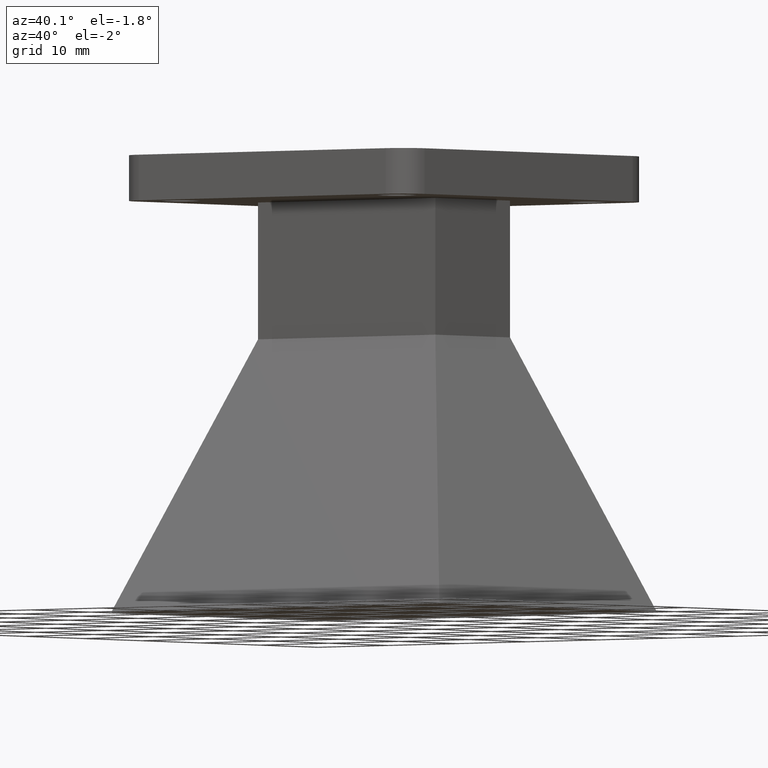
[diagram: clean part render]
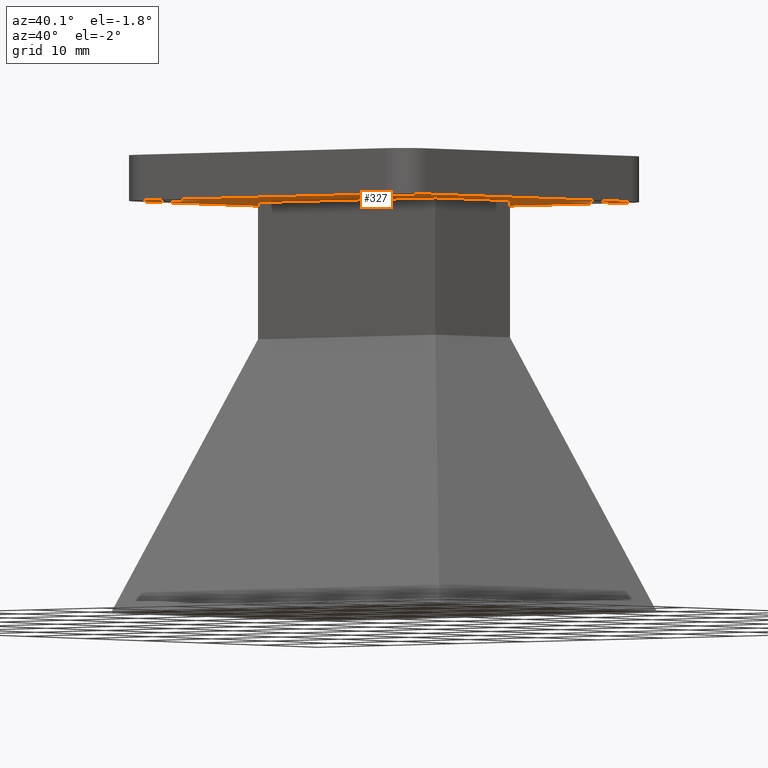
[diagram: same view with one face highlighted and labeled with its STEP entity id]
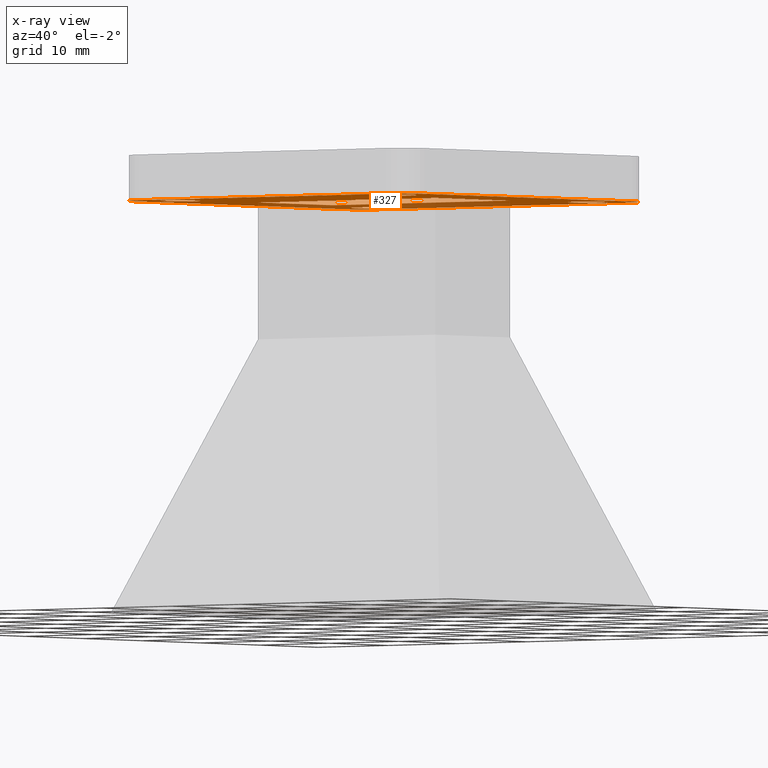
[diagram: x-ray of the same camera — body ghosted, the highlighted face saturated]
A machine part, auxiliary view. The second image highlights one B-rep face of the part: STEP entity #327.
The next image is the same camera in x-ray: the body ghosted, the highlighted face saturated — about 31% of this face is hidden behind the body in this view.
In plain terms, the highlighted planar face has unit normal (0, 0, 1).
Its self-contained STEP definition (entity closure, byte-faithful):
#6 = EDGE_CURVE ( 'NONE', #121, #649, #537, .T. ) ;
#14 = ORIENTED_EDGE ( 'NONE', *, *, #837, .F. ) ;
#31 = ORIENTED_EDGE ( 'NONE', *, *, #1131, .F. ) ;
#36 = DIRECTION ( 'NONE',  ( 0.0000000000000000000, 0.0000000000000000000, 1.000000000000000000 ) ) ;
#38 = CARTESIAN_POINT ( 'NONE',  ( -0.8149999999999997200, 0.6968897637795274900, -0.1968503937007874100 ) ) ;
#48 = CARTESIAN_POINT ( 'NONE',  ( -0.6099999999999997600, 0.6400000000000001200, -0.1968503937007874100 ) ) ;
#50 = AXIS2_PLACEMENT_3D ( 'NONE', #223, #136, #751 ) ;
#56 = AXIS2_PLACEMENT_3D ( 'NONE', #389, #1020, #911 ) ;
#62 = ORIENTED_EDGE ( 'NONE', *, *, #247, .F. ) ;
#65 = CARTESIAN_POINT ( 'NONE',  ( -0.6968897637795273800, -0.8149999999999999500, -0.1968503937007874100 ) ) ;
#75 = EDGE_LOOP ( 'NONE', ( #1042, #31, #814, #543 ) ) ;
#101 = EDGE_CURVE ( 'NONE', #463, #367, #554, .T. ) ;
#107 = CARTESIAN_POINT ( 'NONE',  ( 0.6968897637795276000, -0.6968897637795274900, -0.1968503937007874100 ) ) ;
#121 = VERTEX_POINT ( 'NONE', #213 ) ;
#128 = DIRECTION ( 'NONE',  ( 0.0000000000000000000, 1.000000000000000000, 0.0000000000000000000 ) ) ;
#130 = EDGE_CURVE ( 'NONE', #939, #121, #333, .T. ) ;
#132 = DIRECTION ( 'NONE',  ( 0.0000000000000000000, 0.0000000000000000000, 1.000000000000000000 ) ) ;
#134 = DIRECTION ( 'NONE',  ( 0.0000000000000000000, 0.0000000000000000000, 1.000000000000000000 ) ) ;
#136 = DIRECTION ( 'NONE',  ( 0.0000000000000000000, 0.0000000000000000000, 1.000000000000000000 ) ) ;
#151 = CIRCLE ( 'NONE', #541, 0.1181102362204724100 ) ;
#164 = AXIS2_PLACEMENT_3D ( 'NONE', #486, #226, #932 ) ;
#177 = EDGE_LOOP ( 'NONE', ( #406, #1103 ) ) ;
#180 = CARTESIAN_POINT ( 'NONE',  ( -0.4999999999999998300, -0.2500000000000000600, -0.1968503937007874100 ) ) ;
#189 = ORIENTED_EDGE ( 'NONE', *, *, #356, .F. ) ;
#201 = VECTOR ( 'NONE', #325, 39.37007874015748100 ) ;
#202 = FACE_BOUND ( 'NONE', #75, .T. ) ;
#210 = EDGE_LOOP ( 'NONE', ( #341, #902 ) ) ;
#213 = CARTESIAN_POINT ( 'NONE',  ( 0.5000000000000001100, -0.2500000000000000600, -0.1968503937007874100 ) ) ;
#223 = CARTESIAN_POINT ( 'NONE',  ( 0.6100000000000002100, 0.6400000000000002400, -0.1968503937007874100 ) ) ;
#226 = DIRECTION ( 'NONE',  ( 0.0000000000000000000, 0.0000000000000000000, 1.000000000000000000 ) ) ;
#230 = DIRECTION ( 'NONE',  ( 1.000000000000000000, 0.0000000000000000000, 0.0000000000000000000 ) ) ;
#232 = CIRCLE ( 'NONE', #56, 0.08594000000000001600 ) ;
#240 = CARTESIAN_POINT ( 'NONE',  ( 0.6100000000000002100, 0.6400000000000002400, -0.1968503937007874100 ) ) ;
#242 = DIRECTION ( 'NONE',  ( 0.0000000000000000000, 0.0000000000000000000, 1.000000000000000000 ) ) ;
#243 = CARTESIAN_POINT ( 'NONE',  ( 0.6959400000000002300, 0.6400000000000002400, -0.1968503937007874100 ) ) ;
#247 = EDGE_CURVE ( 'NONE', #1114, #463, #936, .T. ) ;
#257 = CARTESIAN_POINT ( 'NONE',  ( 0.6968897637795276000, -0.8149999999999999500, -0.1968503937007874100 ) ) ;
#263 = CARTESIAN_POINT ( 'NONE',  ( -0.4999999999999998300, 0.2500000000000000600, -0.1968503937007874100 ) ) ;
#277 = VERTEX_POINT ( 'NONE', #468 ) ;
#287 = CIRCLE ( 'NONE', #994, 0.08594000000000001600 ) ;
#291 = DIRECTION ( 'NONE',  ( 0.0000000000000000000, 0.0000000000000000000, 1.000000000000000000 ) ) ;
#295 = EDGE_CURVE ( 'NONE', #339, #1083, #376, .T. ) ;
#296 = CARTESIAN_POINT ( 'NONE',  ( 0.8150000000000000600, -0.6968897637795274900, -0.1968503937007874100 ) ) ;
#300 = LINE ( 'NONE', #304, #631 ) ;
#304 = CARTESIAN_POINT ( 'NONE',  ( -0.6968897637795273800, 0.8149999999999999500, -0.1968503937007874100 ) ) ;
#309 = CARTESIAN_POINT ( 'NONE',  ( -0.5240599999999997500, -0.6399999999999999000, -0.1968503937007874100 ) ) ;
#325 = DIRECTION ( 'NONE',  ( -0.0000000000000000000, -1.000000000000000000, -0.0000000000000000000 ) ) ;
#327 = ADVANCED_FACE ( 'NONE', ( #349, #520, #729, #535, #1164, #202 ), #1027, .F. ) ;
#333 = LINE ( 'NONE', #745, #738 ) ;
#334 = DIRECTION ( 'NONE',  ( 1.000000000000000000, 0.0000000000000000000, 0.0000000000000000000 ) ) ;
#338 = AXIS2_PLACEMENT_3D ( 'NONE', #107, #291, #906 ) ;
#339 = VERTEX_POINT ( 'NONE', #938 ) ;
#341 = ORIENTED_EDGE ( 'NONE', *, *, #390, .T. ) ;
#342 = DIRECTION ( 'NONE',  ( 1.000000000000000000, 0.0000000000000000000, 0.0000000000000000000 ) ) ;
#343 = CARTESIAN_POINT ( 'NONE',  ( -0.6099999999999997600, -0.6399999999999999000, -0.1968503937007874100 ) ) ;
#347 = CARTESIAN_POINT ( 'NONE',  ( -0.6959399999999997800, -0.6399999999999999000, -0.1968503937007874100 ) ) ;
#349 = FACE_BOUND ( 'NONE', #354, .T. ) ;
#354 = EDGE_LOOP ( 'NONE', ( #1081, #859 ) ) ;
#356 = EDGE_CURVE ( 'NONE', #975, #339, #874, .T. ) ;
#367 = VERTEX_POINT ( 'NONE', #414 ) ;
#370 = AXIS2_PLACEMENT_3D ( 'NONE', #343, #862, #334 ) ;
#374 = CIRCLE ( 'NONE', #1119, 0.08594000000000001600 ) ;
#376 = CIRCLE ( 'NONE', #920, 0.1181102362204724100 ) ;
#379 = VERTEX_POINT ( 'NONE', #832 ) ;
#381 = VERTEX_POINT ( 'NONE', #1032 ) ;
#387 = CIRCLE ( 'NONE', #629, 0.1181102362204724100 ) ;
#389 = CARTESIAN_POINT ( 'NONE',  ( 0.6100000000000002100, -0.6399999999999996800, -0.1968503937007874100 ) ) ;
#390 = EDGE_CURVE ( 'NONE', #889, #1056, #838, .T. ) ;
#401 = CIRCLE ( 'NONE', #50, 0.08594000000000001600 ) ;
#406 = ORIENTED_EDGE ( 'NONE', *, *, #870, .T. ) ;
#408 = EDGE_CURVE ( 'NONE', #1140, #379, #287, .T. ) ;
#409 = VERTEX_POINT ( 'NONE', #765 ) ;
#413 = EDGE_CURVE ( 'NONE', #1083, #1114, #728, .T. ) ;
#414 = CARTESIAN_POINT ( 'NONE',  ( 0.8150000000000000600, 0.6968897637795274900, -0.1968503937007874100 ) ) ;
#426 = DIRECTION ( 'NONE',  ( 1.000000000000000000, 0.0000000000000000000, 0.0000000000000000000 ) ) ;
#447 = ORIENTED_EDGE ( 'NONE', *, *, #101, .F. ) ;
#453 = CIRCLE ( 'NONE', #770, 0.08594000000000001600 ) ;
#463 = VERTEX_POINT ( 'NONE', #1060 ) ;
#468 = CARTESIAN_POINT ( 'NONE',  ( 0.5240600000000001900, -0.6399999999999996800, -0.1968503937007874100 ) ) ;
#471 = DIRECTION ( 'NONE',  ( -1.000000000000000000, -0.0000000000000000000, -0.0000000000000000000 ) ) ;
#478 = VECTOR ( 'NONE', #603, 39.37007874015748100 ) ;
#486 = CARTESIAN_POINT ( 'NONE',  ( 0.6968897637795276000, -0.6968897637795274900, -0.1968503937007874100 ) ) ;
#489 = VERTEX_POINT ( 'NONE', #243 ) ;
#495 = LINE ( 'NONE', #1162, #785 ) ;
#520 = FACE_BOUND ( 'NONE', #991, .T. ) ;
#522 = DIRECTION ( 'NONE',  ( 1.000000000000000000, 0.0000000000000000000, 0.0000000000000000000 ) ) ;
#524 = EDGE_CURVE ( 'NONE', #892, #975, #387, .T. ) ;
#535 = FACE_BOUND ( 'NONE', #177, .T. ) ;
#537 = LINE ( 'NONE', #180, #955 ) ;
#541 = AXIS2_PLACEMENT_3D ( 'NONE', #565, #821, #652 ) ;
#543 = ORIENTED_EDGE ( 'NONE', *, *, #6, .F. ) ;
#554 = LINE ( 'NONE', #296, #797 ) ;
#565 = CARTESIAN_POINT ( 'NONE',  ( 0.6968897637795276000, 0.6968897637795274900, -0.1968503937007874100 ) ) ;
#575 = ORIENTED_EDGE ( 'NONE', *, *, #998, .T. ) ;
#580 = CARTESIAN_POINT ( 'NONE',  ( -0.6099999999999997600, -0.6399999999999999000, -0.1968503937007874100 ) ) ;
#585 = DIRECTION ( 'NONE',  ( -1.000000000000000000, 0.0000000000000000000, 0.0000000000000000000 ) ) ;
#587 = ORIENTED_EDGE ( 'NONE', *, *, #1015, .T. ) ;
#594 = EDGE_CURVE ( 'NONE', #649, #653, #495, .T. ) ;
#596 = CARTESIAN_POINT ( 'NONE',  ( -0.6968897637795273800, -0.8149999999999999500, -0.1968503937007874100 ) ) ;
#597 = EDGE_CURVE ( 'NONE', #277, #409, #953, .T. ) ;
#603 = DIRECTION ( 'NONE',  ( 1.000000000000000000, 0.0000000000000000000, 0.0000000000000000000 ) ) ;
#609 = CARTESIAN_POINT ( 'NONE',  ( -0.6959399999999997800, 0.6400000000000001200, -0.1968503937007874100 ) ) ;
#618 = CARTESIAN_POINT ( 'NONE',  ( -0.4999999999999998300, -0.2500000000000000000, -0.1968503937007874100 ) ) ;
#629 = AXIS2_PLACEMENT_3D ( 'NONE', #965, #1067, #709 ) ;
#631 = VECTOR ( 'NONE', #471, 39.37007874015748100 ) ;
#648 = CARTESIAN_POINT ( 'NONE',  ( -0.6968897637795273800, 0.8149999999999999500, -0.1968503937007874100 ) ) ;
#649 = VERTEX_POINT ( 'NONE', #618 ) ;
#652 = DIRECTION ( 'NONE',  ( -1.000000000000000000, 0.0000000000000000000, 0.0000000000000000000 ) ) ;
#653 = VERTEX_POINT ( 'NONE', #263 ) ;
#669 = DIRECTION ( 'NONE',  ( 1.000000000000000000, 0.0000000000000000000, 0.0000000000000000000 ) ) ;
#674 = CARTESIAN_POINT ( 'NONE',  ( -0.6099999999999997600, 0.6400000000000001200, -0.1968503937007874100 ) ) ;
#707 = DIRECTION ( 'NONE',  ( -1.000000000000000000, -0.0000000000000000000, -0.0000000000000000000 ) ) ;
#709 = DIRECTION ( 'NONE',  ( -1.000000000000000000, 0.0000000000000000000, 0.0000000000000000000 ) ) ;
#710 = LINE ( 'NONE', #969, #478 ) ;
#719 = ORIENTED_EDGE ( 'NONE', *, *, #413, .F. ) ;
#728 = LINE ( 'NONE', #596, #755 ) ;
#729 = FACE_BOUND ( 'NONE', #210, .T. ) ;
#731 = EDGE_LOOP ( 'NONE', ( #62, #719, #843, #189, #857, #14, #979, #447 ) ) ;
#738 = VECTOR ( 'NONE', #1025, 39.37007874015748100 ) ;
#745 = CARTESIAN_POINT ( 'NONE',  ( 0.5000000000000001100, -0.2500000000000000600, -0.1968503937007874100 ) ) ;
#750 = CARTESIAN_POINT ( 'NONE',  ( -0.6968897637795273800, -0.6968897637795274900, -0.1968503937007874100 ) ) ;
#751 = DIRECTION ( 'NONE',  ( 1.000000000000000000, 0.0000000000000000000, 0.0000000000000000000 ) ) ;
#755 = VECTOR ( 'NONE', #342, 39.37007874015748100 ) ;
#765 = CARTESIAN_POINT ( 'NONE',  ( 0.6959400000000002300, -0.6399999999999996800, -0.1968503937007874100 ) ) ;
#770 = AXIS2_PLACEMENT_3D ( 'NONE', #674, #132, #230 ) ;
#785 = VECTOR ( 'NONE', #791, 39.37007874015748100 ) ;
#791 = DIRECTION ( 'NONE',  ( 0.0000000000000000000, 1.000000000000000000, 0.0000000000000000000 ) ) ;
#792 = DIRECTION ( 'NONE',  ( 0.0000000000000000000, 0.0000000000000000000, 1.000000000000000000 ) ) ;
#797 = VECTOR ( 'NONE', #128, 39.37007874015748100 ) ;
#803 = AXIS2_PLACEMENT_3D ( 'NONE', #580, #36, #669 ) ;
#808 = CIRCLE ( 'NONE', #370, 0.08594000000000001600 ) ;
#814 = ORIENTED_EDGE ( 'NONE', *, *, #594, .F. ) ;
#821 = DIRECTION ( 'NONE',  ( 0.0000000000000000000, 0.0000000000000000000, 1.000000000000000000 ) ) ;
#832 = CARTESIAN_POINT ( 'NONE',  ( -0.5240599999999997500, 0.6400000000000001200, -0.1968503937007874100 ) ) ;
#834 = CARTESIAN_POINT ( 'NONE',  ( 0.5000000000000001100, 0.2500000000000000600, -0.1968503937007874100 ) ) ;
#835 = CARTESIAN_POINT ( 'NONE',  ( -0.8149999999999997200, -0.6968897637795274900, -0.1968503937007874100 ) ) ;
#837 = EDGE_CURVE ( 'NONE', #381, #892, #300, .T. ) ;
#838 = CIRCLE ( 'NONE', #803, 0.08594000000000001600 ) ;
#842 = AXIS2_PLACEMENT_3D ( 'NONE', #882, #792, #522 ) ;
#843 = ORIENTED_EDGE ( 'NONE', *, *, #295, .F. ) ;
#848 = DIRECTION ( 'NONE',  ( 1.000000000000000000, 0.0000000000000000000, 0.0000000000000000000 ) ) ;
#857 = ORIENTED_EDGE ( 'NONE', *, *, #524, .F. ) ;
#859 = ORIENTED_EDGE ( 'NONE', *, *, #408, .T. ) ;
#862 = DIRECTION ( 'NONE',  ( 0.0000000000000000000, 0.0000000000000000000, 1.000000000000000000 ) ) ;
#867 = EDGE_CURVE ( 'NONE', #367, #381, #151, .T. ) ;
#870 = EDGE_CURVE ( 'NONE', #409, #277, #232, .T. ) ;
#874 = LINE ( 'NONE', #835, #201 ) ;
#882 = CARTESIAN_POINT ( 'NONE',  ( 0.6100000000000002100, -0.6399999999999996800, -0.1968503937007874100 ) ) ;
#889 = VERTEX_POINT ( 'NONE', #309 ) ;
#892 = VERTEX_POINT ( 'NONE', #648 ) ;
#902 = ORIENTED_EDGE ( 'NONE', *, *, #1030, .T. ) ;
#906 = DIRECTION ( 'NONE',  ( 1.000000000000000000, 0.0000000000000000000, 0.0000000000000000000 ) ) ;
#911 = DIRECTION ( 'NONE',  ( 1.000000000000000000, 0.0000000000000000000, 0.0000000000000000000 ) ) ;
#920 = AXIS2_PLACEMENT_3D ( 'NONE', #750, #134, #585 ) ;
#932 = DIRECTION ( 'NONE',  ( 1.000000000000000000, 0.0000000000000000000, -0.0000000000000000000 ) ) ;
#936 = CIRCLE ( 'NONE', #338, 0.1181102362204724100 ) ;
#938 = CARTESIAN_POINT ( 'NONE',  ( -0.8149999999999997200, -0.6968897637795274900, -0.1968503937007874100 ) ) ;
#939 = VERTEX_POINT ( 'NONE', #834 ) ;
#953 = CIRCLE ( 'NONE', #842, 0.08594000000000001600 ) ;
#955 = VECTOR ( 'NONE', #707, 39.37007874015748100 ) ;
#961 = VERTEX_POINT ( 'NONE', #1049 ) ;
#965 = CARTESIAN_POINT ( 'NONE',  ( -0.6968897637795273800, 0.6968897637795274900, -0.1968503937007874100 ) ) ;
#969 = CARTESIAN_POINT ( 'NONE',  ( -0.4999999999999998300, 0.2500000000000000600, -0.1968503937007874100 ) ) ;
#975 = VERTEX_POINT ( 'NONE', #38 ) ;
#979 = ORIENTED_EDGE ( 'NONE', *, *, #867, .F. ) ;
#986 = EDGE_CURVE ( 'NONE', #379, #1140, #453, .T. ) ;
#991 = EDGE_LOOP ( 'NONE', ( #587, #575 ) ) ;
#994 = AXIS2_PLACEMENT_3D ( 'NONE', #48, #242, #426 ) ;
#998 = EDGE_CURVE ( 'NONE', #961, #489, #401, .T. ) ;
#1015 = EDGE_CURVE ( 'NONE', #489, #961, #374, .T. ) ;
#1020 = DIRECTION ( 'NONE',  ( 0.0000000000000000000, 0.0000000000000000000, 1.000000000000000000 ) ) ;
#1025 = DIRECTION ( 'NONE',  ( -0.0000000000000000000, -1.000000000000000000, -0.0000000000000000000 ) ) ;
#1027 = PLANE ( 'NONE',  #164 ) ;
#1030 = EDGE_CURVE ( 'NONE', #1056, #889, #808, .T. ) ;
#1032 = CARTESIAN_POINT ( 'NONE',  ( 0.6968897637795276000, 0.8149999999999999500, -0.1968503937007874100 ) ) ;
#1034 = DIRECTION ( 'NONE',  ( 0.0000000000000000000, 0.0000000000000000000, 1.000000000000000000 ) ) ;
#1042 = ORIENTED_EDGE ( 'NONE', *, *, #130, .F. ) ;
#1049 = CARTESIAN_POINT ( 'NONE',  ( 0.5240600000000001900, 0.6400000000000002400, -0.1968503937007874100 ) ) ;
#1056 = VERTEX_POINT ( 'NONE', #347 ) ;
#1060 = CARTESIAN_POINT ( 'NONE',  ( 0.8150000000000000600, -0.6968897637795274900, -0.1968503937007874100 ) ) ;
#1067 = DIRECTION ( 'NONE',  ( 0.0000000000000000000, 0.0000000000000000000, 1.000000000000000000 ) ) ;
#1081 = ORIENTED_EDGE ( 'NONE', *, *, #986, .T. ) ;
#1083 = VERTEX_POINT ( 'NONE', #65 ) ;
#1103 = ORIENTED_EDGE ( 'NONE', *, *, #597, .T. ) ;
#1114 = VERTEX_POINT ( 'NONE', #257 ) ;
#1119 = AXIS2_PLACEMENT_3D ( 'NONE', #240, #1034, #848 ) ;
#1131 = EDGE_CURVE ( 'NONE', #653, #939, #710, .T. ) ;
#1140 = VERTEX_POINT ( 'NONE', #609 ) ;
#1162 = CARTESIAN_POINT ( 'NONE',  ( -0.4999999999999998300, -0.2500000000000000600, -0.1968503937007874100 ) ) ;
#1164 = FACE_OUTER_BOUND ( 'NONE', #731, .T. ) ;